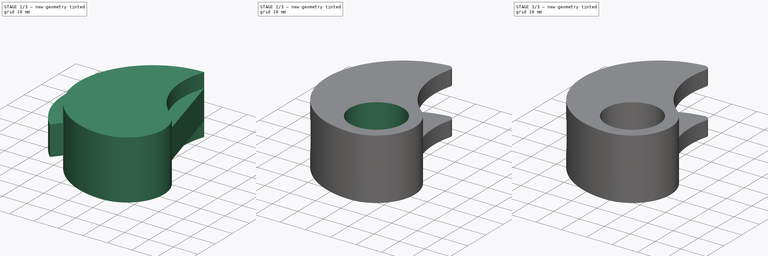
[diagram: build sequence overview — one tinted view per stage of 3, left to right]
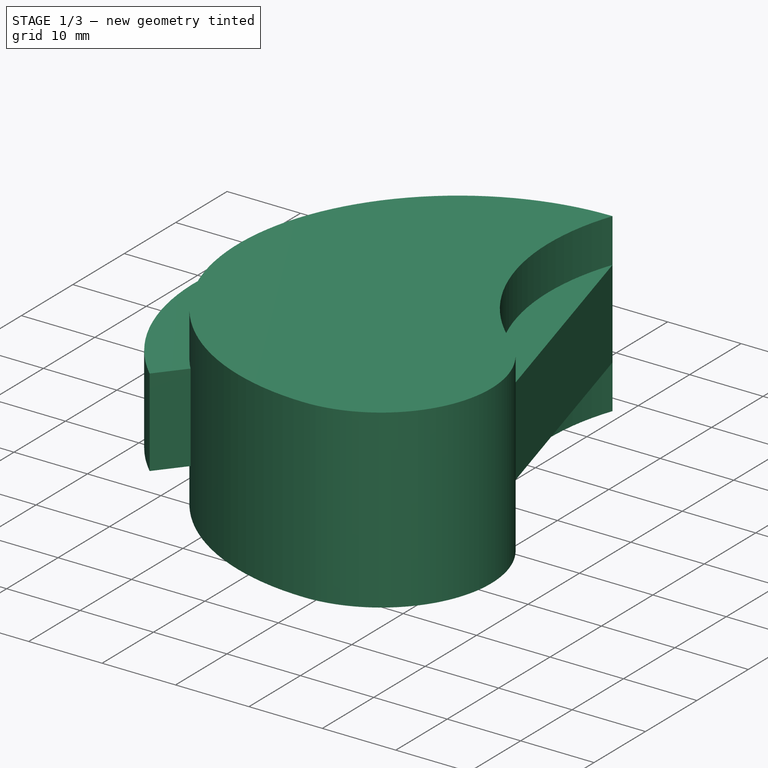
[diagram: stage 1 of 3 — iso view after this stage's code; geometry added in this stage tinted green]
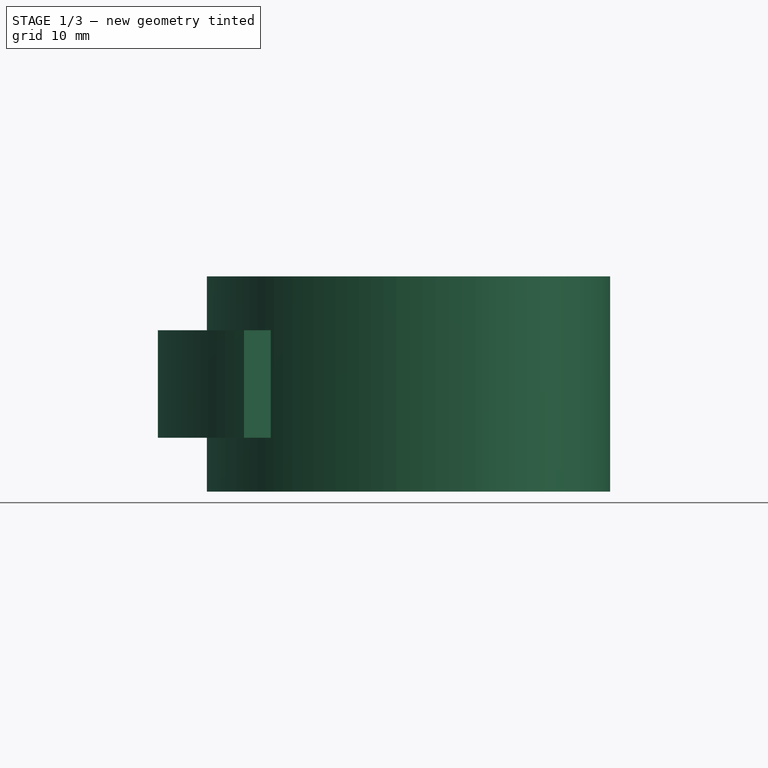
[diagram: stage 1 of 3 — front view after this stage's code; geometry added in this stage tinted green]
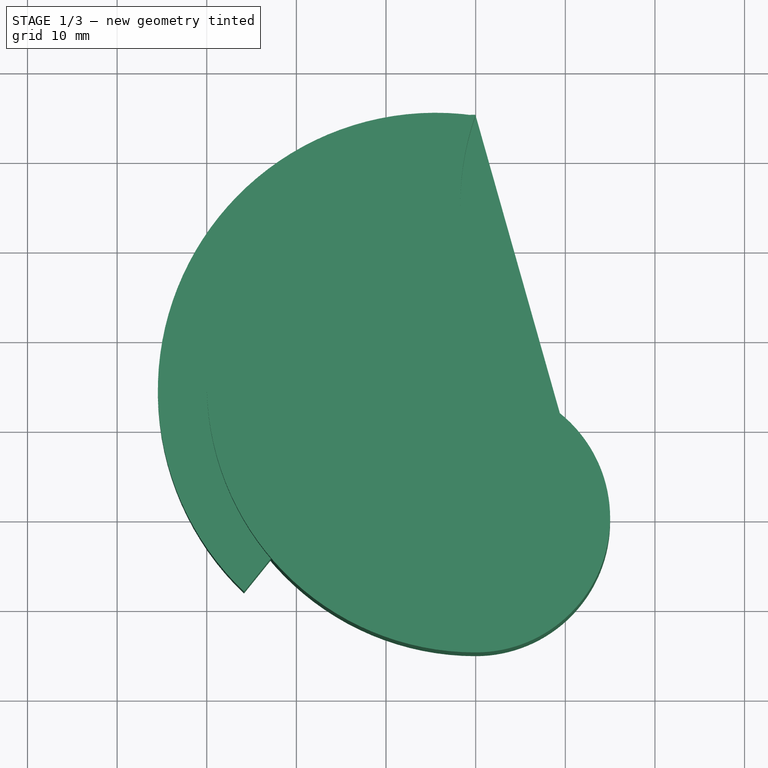
[diagram: stage 1 of 3 — top view after this stage's code; geometry added in this stage tinted green]
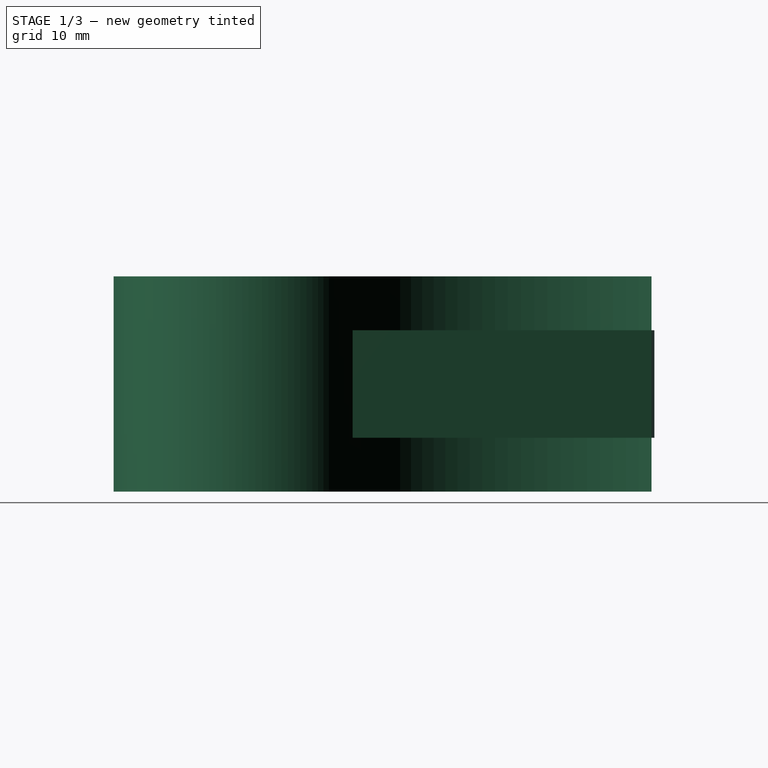
[diagram: stage 1 of 3 — right view after this stage's code; geometry added in this stage tinted green]
FCSTD DOCUMENT  (FreeCAD 0.15R4671 (Git))
Label: cam
License: All rights reserved
LicenseURL: http://en.wikipedia.org/wiki/All_rights_reserved
objects: Sketcher::SketchObject×5, PartDesign::Pocket×3, PartDesign::Pad×2, Part::Part2DObjectPython×1, Drawing::FeatureViewPython×1, PartDesign::Fillet×1, Part::Cut×1, Drawing::FeatureViewPart×1, Drawing::FeaturePage×1
note: 18 computed .brp shape members not serialized (recipe doc carries the construction recipe); baked Part::Feature solids carry a one-line shape summary decoded from their .brp

FEATURE [Sketcher::SketchObject] Sketch
  sketch-geometry (6):
    g0: Circle [constr] CenterX=0 CenterY=0 CenterZ=0 NormalX=0 NormalY=0 NormalZ=1 Radius=10.5
    g1: Circle [constr] CenterX=0 CenterY=0 CenterZ=0 NormalX=0 NormalY=0 NormalZ=1 Radius=15
    g2: Circle [constr] CenterX=0 CenterY=0 CenterZ=0 NormalX=0 NormalY=0 NormalZ=1 Radius=45
    g3: ArcOfCircle CenterX=3.255e-08 CenterY=15 CenterZ=0 NormalX=0 NormalY=0 NormalZ=1 Radius=30 StartAngle=1.5708 EndAngle=4.71239
    g4: ArcOfCircle CenterX=28.2843 CenterY=35 CenterZ=0 NormalX=0 NormalY=0 NormalZ=1 Radius=30 StartAngle=2.80176 EndAngle=4.03271
    g5: ArcOfCircle CenterX=0 CenterY=0 CenterZ=0 NormalX=0 NormalY=0 NormalZ=1 Radius=15 StartAngle=4.71239 EndAngle=7.17431
  constraints (18):
    c: Coincident(g0,g-1)
    c: Radius(g0) = 10.5
    c: Coincident(g1,g-1)
    c: Radius(g1) = 15
    c: Coincident(g2,g-1)
    c: Radius(g2) = 45
    c: PointOnObject(g3,g-2)
    c: PointOnObject(g3,g1)
    c: Tangent(g3,g1)
    c: PointOnObject(g4,g1)
    c: Coincident(g4,g3)
    c: PointOnObject(g3,g2)
    c: Tangent(g3,g2)
    c: PointOnObject(g4,g2)
    c: Coincident(g5,g-1)
    c: Coincident(g5,g4)
    c: Coincident(g5,g3)
    c: Radius(g4) = 30
FEATURE [Sketcher::SketchObject] Sketch001
  Placement = pos=(0,0,6) rot=(0,0,1;0rad)
  sketch-geometry (9):
    g0: Circle [constr] CenterX=0 CenterY=0 CenterZ=0 NormalX=0 NormalY=0 NormalZ=1 Radius=15
    g1: LineSegment [constr] StartX=0 StartY=0 StartZ=0 EndX=0 EndY=45 EndZ=0
    g2: ArcOfCircle CenterX=0 CenterY=0 CenterZ=0 NormalX=0 NormalY=0 NormalZ=1 Radius=15 StartAngle=0.891125 EndAngle=2.46192
    g3: LineSegment StartX=9.42806 StartY=11.6667 StartZ=0 EndX=0 EndY=45 EndZ=0
    g4: ArcOfCircle CenterX=-4.45802 CenterY=14.3222 CenterZ=0 NormalX=0 NormalY=0 NormalZ=1 Radius=31 StartAngle=1.42649 EndAngle=3.951
    g5: LineSegment [constr] StartX=0 StartY=0 StartZ=0 EndX=0 EndY=-15 EndZ=0
    g6: Circle [constr] CenterX=0 CenterY=0 CenterZ=0 NormalX=0 NormalY=0 NormalZ=1 Radius=45
    g7: Circle [constr] CenterX=28.2843 CenterY=35 CenterZ=0 NormalX=0 NormalY=0 NormalZ=1 Radius=30
    g8: LineSegment StartX=-11.6667 StartY=9.42806 StartZ=0 EndX=-25.8459 EndY=-8.11791 EndZ=0
  constraints (25):
    c: Coincident(g0,g-1)
    c: Radius(g0) = 15
    c: Coincident(g1,g-1)
    c: Distance(g1) = 45
    c: Vertical(g1)
    c: Coincident(g2,g-1)
    c: Coincident(g3,g1)
    c: Coincident(g4,g1)
    c: Coincident(g2,g3)
    c: PointOnObject(g2,g0)
    c: Coincident(g5,g-1)
    c: Vertical(g5)
    c: Distance(g5) = 15
    c: Coincident(g6,g-1)
    c: Radius(g6) = 45
    c: PointOnObject(g7,g6)
    c: Radius(g7) = 30
    c: PointOnObject(g1,g7)
    c: PointOnObject(g2,g7)
    c: Coincident(g8,g2)
    c: Coincident(g4,g8)
    c: Angle(g2) = 1.5708
    c: PointOnObject(g4,g0)
    c: Tangent(g8,g0)
    c: Radius(g4) = 31
FEATURE [PartDesign::Pad] Pad001
  Length = 12
  Length2 = 100
  Placement = pos=(0,0,6) rot=(0,0,1;0rad)
  Sketch = -> Sketch001
  Type = 0
FEATURE [Part::Part2DObjectPython] Circle  # Draft 2D object (typed FeaturePython)
  FirstAngle = 0
  LastAngle = 0
  MakeFace = true
  Placement = pos=(0,0,0) rot=(1,0,0;3.14159rad)
  Radius = 1
FEATURE [Drawing::FeatureViewPython] ViewCircle  # drawing view (typed FeaturePython)
  Direction = (0,0,0)
  FillStyle = 0
  FontSize = 12
  LineStyle = 0
  LineWidth = 0.35
  Rotation = 0
  Source = -> Circle
  ViewResult = <g id="ViewCircle" transform="rotate(0.0,20.0,40.0) translate(20.0,40.0) scale(1.0,-1.0)"><circle cx="0.0" cy="0.0" r="1.0" stroke="#000000" stroke-width="0.35 px" style="stroke-width:0.35;stroke-miterlimit:4;stroke-dasharray:none;fill:#cccccc"/>\n</g>
  Visible = true
  X = 20
  Y = 40
FEATURE [PartDesign::Pad] Pad
  Length = 24
  Length2 = 100
  Sketch = -> Sketch
  Type = 0
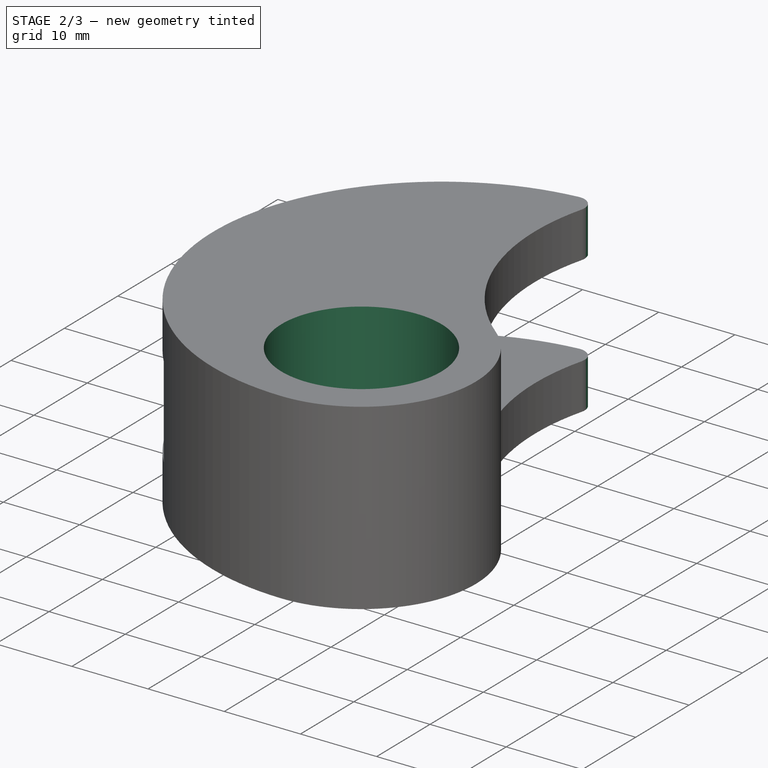
[diagram: stage 2 of 3 — iso view after this stage's code; geometry added in this stage tinted green]
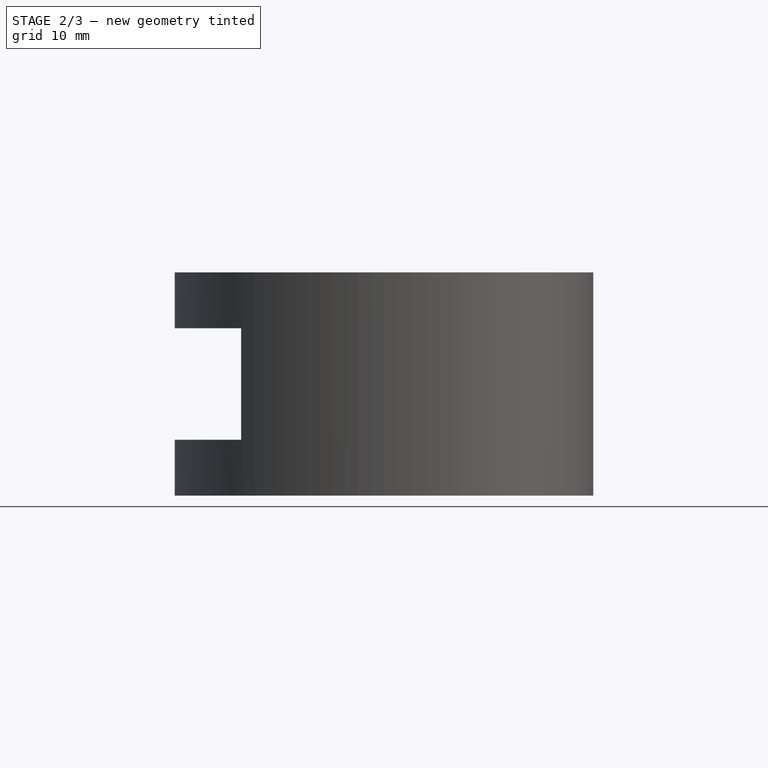
[diagram: stage 2 of 3 — front view after this stage's code; geometry added in this stage tinted green]
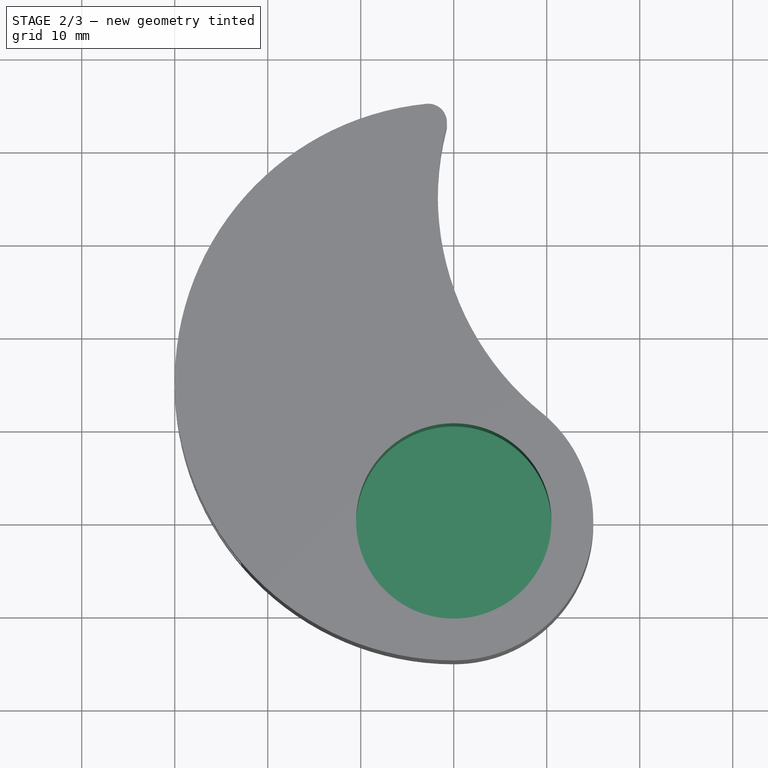
[diagram: stage 2 of 3 — top view after this stage's code; geometry added in this stage tinted green]
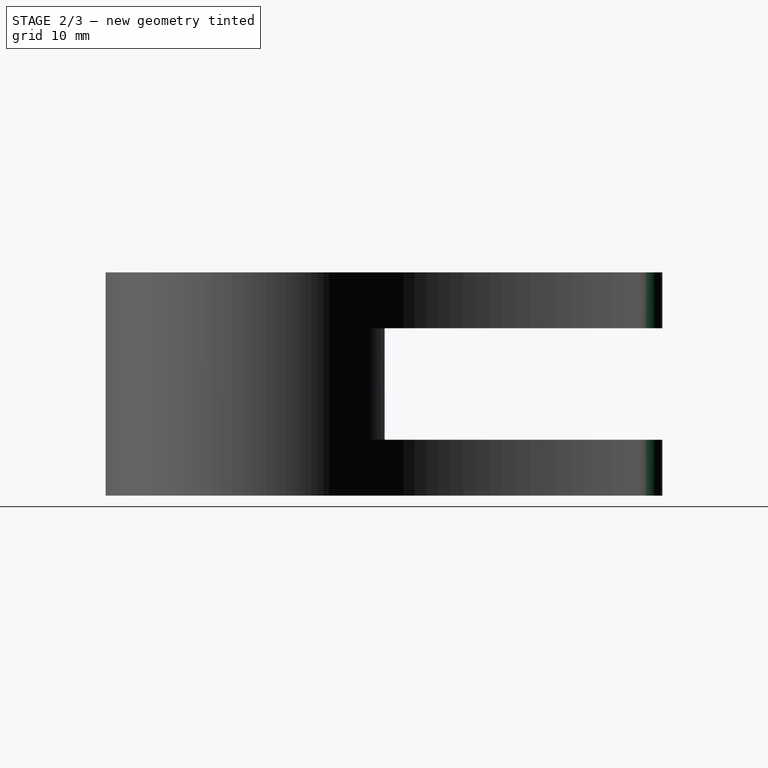
[diagram: stage 2 of 3 — right view after this stage's code; geometry added in this stage tinted green]
FEATURE [PartDesign::Fillet] Fillet
  Base = -> Pad [Edge1]
  Radius = 2
FEATURE [Part::Cut] Cut
  Base = -> Fillet
  Tool = -> Pad001
FEATURE [Drawing::FeatureViewPart] View
  Direction = (0,0,1)
  HiddenWidth = 0.15
  LineWidth = 0.35
  Rotation = 90
  ShowHiddenLines = false
  ShowSmoothLines = false
  Source = -> Cut
  Tolerance = 0.05
  ViewResult = <g id="View"\n   transform="rotate(90,20,40) translate(20,40) scale(1,1)"\n  >\n<g   stroke="rgb(0, 0, 0)"\n   stroke-width="0.35"\n   stroke-linecap="butt"\n   stroke-linejoin="miter"\n   fill="none"\n   transform="scale(1,-1)"\n  >\n<path d="M-2.9291 44.8567 A30 30 0 0 1 4.5841e-14 -15" /><path d="M-2.75546e-15 -15 A15 15 0 0 1 9.42806 11.6667" /><path d="M-2.9291,44.8567 C-2.32867,44.9184 -1.68458,44.6936 -1.24468,44.2013  C-1.03163,43.9645 -0.870549,43.6669 -0.791554,43.3433  C-0.712736,43.0255 -0.715544,42.6855 -0.795196,42.3746 " /><path d="M-0.795196 42.3746 A30 30 0 0 1 9.42806 11.6667" /><path d="M9.42806 11.6667 A30 30 0 0 0 -0.795196 42.3746" /><path d="M-0.795196,42.3746 C-0.715544,42.6855 -0.712736,43.0255 -0.791554,43.3433  C-0.870549,43.6669 -1.03163,43.9645 -1.24468,44.2013  C-1.68458,44.6936 -2.32867,44.9184 -2.9291,44.8567 " /></g>\n</g>
  Visible = true
  X = 20
  Y = 40
FEATURE [Drawing::FeaturePage] Page
  Group = -> [View,ViewCircle]
  Template = <path>
FEATURE [Sketcher::SketchObject] Sketch003
  Placement = pos=(0,0,24) rot=(0,0,1;0rad)
  Support = -> Cut [Face4]
  sketch-geometry (1):
    g0: Circle CenterX=0 CenterY=0 CenterZ=0 NormalX=0 NormalY=0 NormalZ=1 Radius=10.5
  constraints (2):
    c: Coincident(g0,g-1)
    c: Radius(g0) = 10.5
FEATURE [PartDesign::Pocket] Pocket
  Length = 20
  Sketch = -> Sketch003
  Type = 0
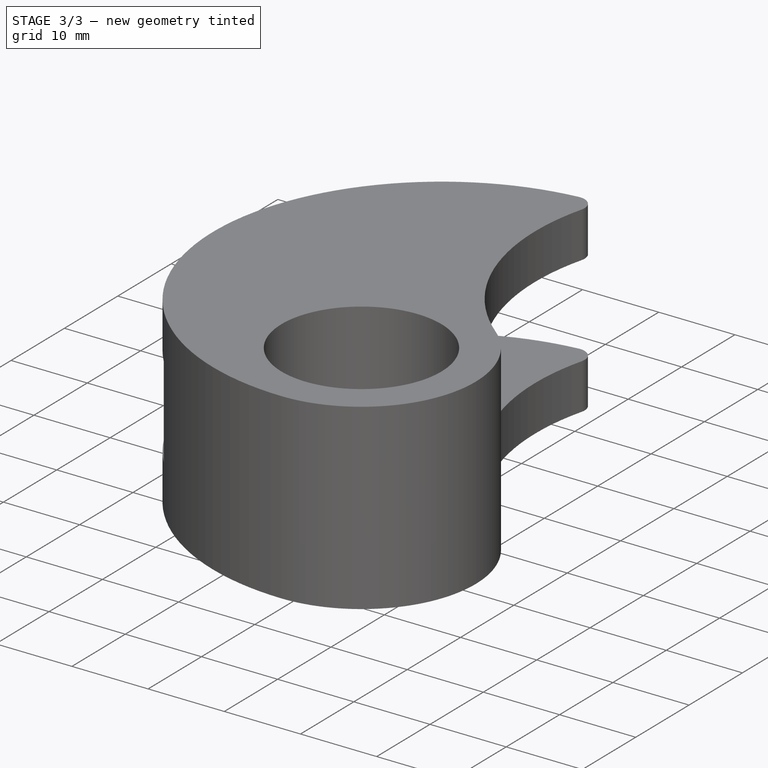
[diagram: stage 3 of 3 — iso view after this stage's code; geometry added in this stage tinted green]
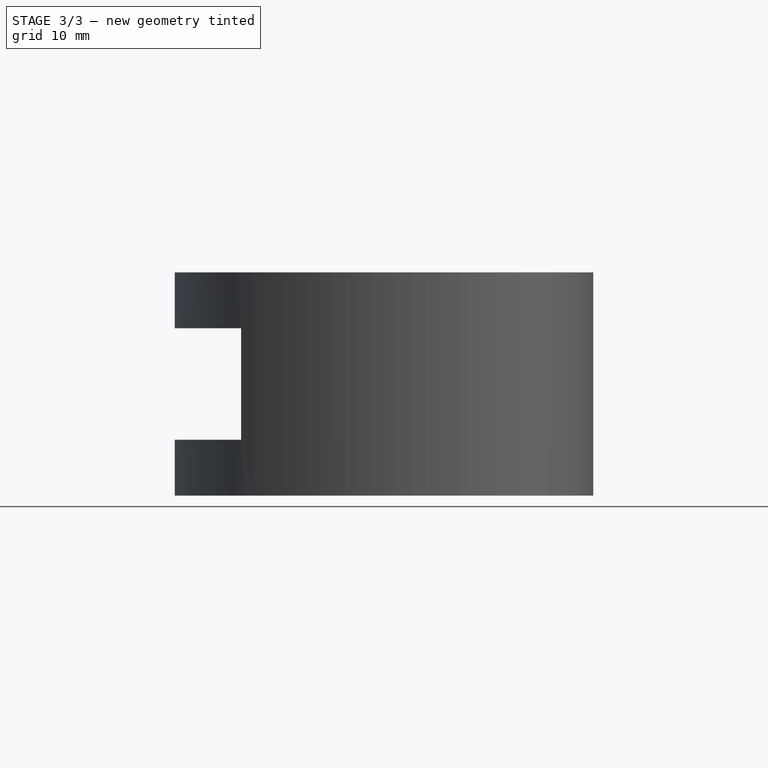
[diagram: stage 3 of 3 — front view after this stage's code; geometry added in this stage tinted green]
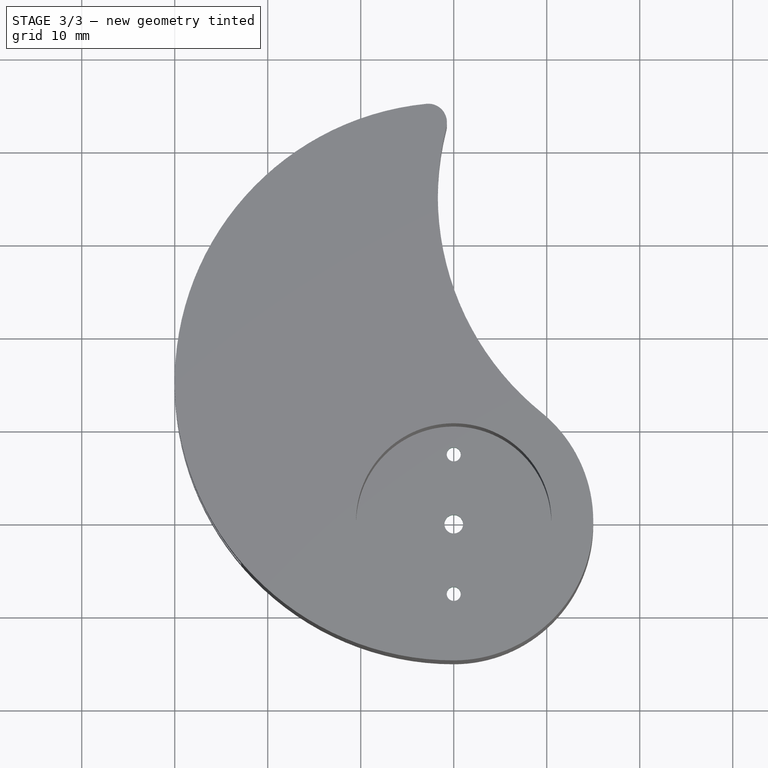
[diagram: stage 3 of 3 — top view after this stage's code; geometry added in this stage tinted green]
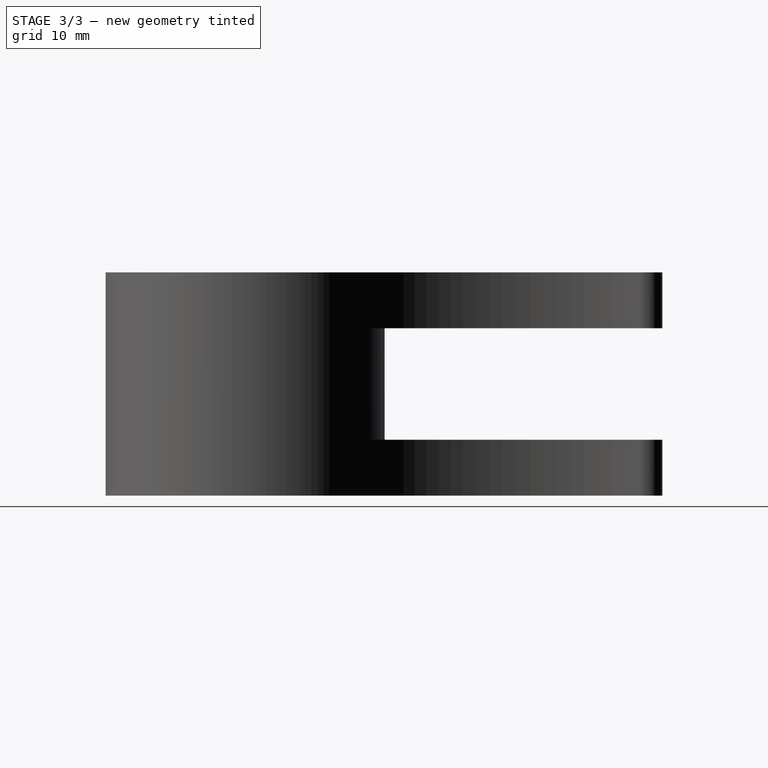
[diagram: stage 3 of 3 — right view after this stage's code; geometry added in this stage tinted green]
FEATURE [Sketcher::SketchObject] Sketch002
  Placement = pos=(0,0,0) rot=(1,0,0;3.14159rad)
  Support = -> Pocket [Face2]
  sketch-geometry (1):
    g0: Circle CenterX=0 CenterY=0 CenterZ=0 NormalX=0 NormalY=0 NormalZ=1 Radius=10.5
  constraints (2):
    c: Coincident(g0,g-1)
    c: Radius(g0) = 10.5
FEATURE [PartDesign::Pocket] Pocket001
  Length = 2
  Sketch = -> Sketch002
  Type = 0
FEATURE [Sketcher::SketchObject] Sketch004
  Placement = pos=(0,0,2) rot=(1,0,0;3.14159rad)
  Support = -> Pocket001 [Face16]
  sketch-geometry (5):
    g0: Circle CenterX=0 CenterY=0 CenterZ=0 NormalX=0 NormalY=0 NormalZ=1 Radius=1
    g1: Circle [constr] CenterX=0 CenterY=0 CenterZ=0 NormalX=0 NormalY=0 NormalZ=1 Radius=7.5
    g2: LineSegment [constr] StartX=0 StartY=7.5 StartZ=0 EndX=0 EndY=-7.5 EndZ=0
    g3: Circle CenterX=0 CenterY=7.5 CenterZ=0 NormalX=0 NormalY=0 NormalZ=1 Radius=0.75
    g4: Circle CenterX=0 CenterY=-7.5 CenterZ=0 NormalX=0 NormalY=0 NormalZ=1 Radius=0.75
  constraints (11):
    c: Coincident(g0,g-1)
    c: Radius(g0) = 1
    c: Coincident(g1,g-1)
    c: Radius(g1) = 7.5
    c: PointOnObject(g2,g1)
    c: PointOnObject(g2,g1)
    c: Vertical(g2)
    c: Coincident(g3,g2)
    c: Radius(g3) = 0.75
    c: Coincident(g4,g2)
    c: Radius(g4) = 0.75
FEATURE [PartDesign::Pocket] Pocket002
  Length = 2
  Sketch = -> Sketch004
  Type = 0
note: 1 file-system path scrubbed to <path> (originals preserved in the JSON sidecar)
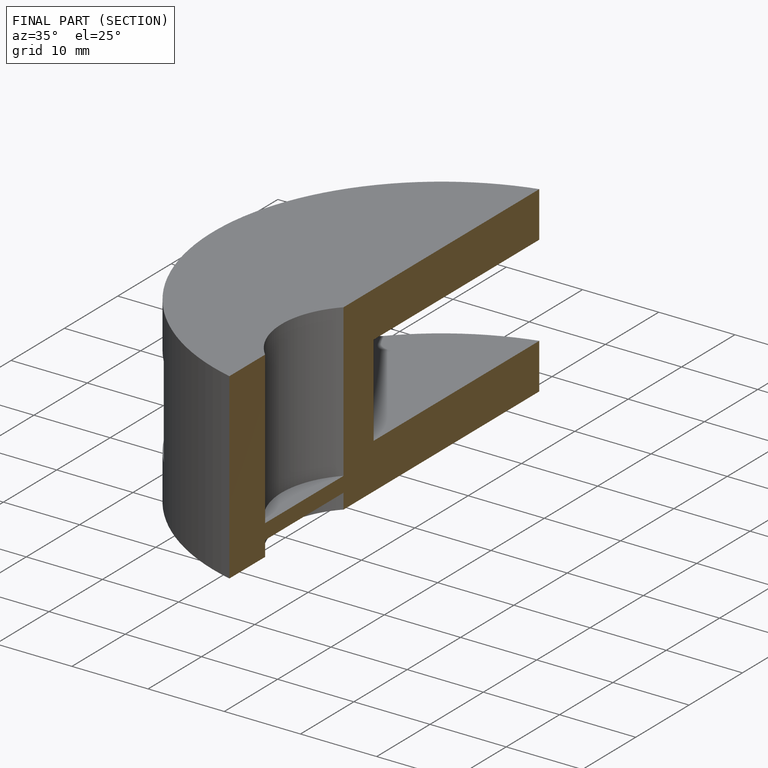
[diagram: finished part — half-section view (interior)]
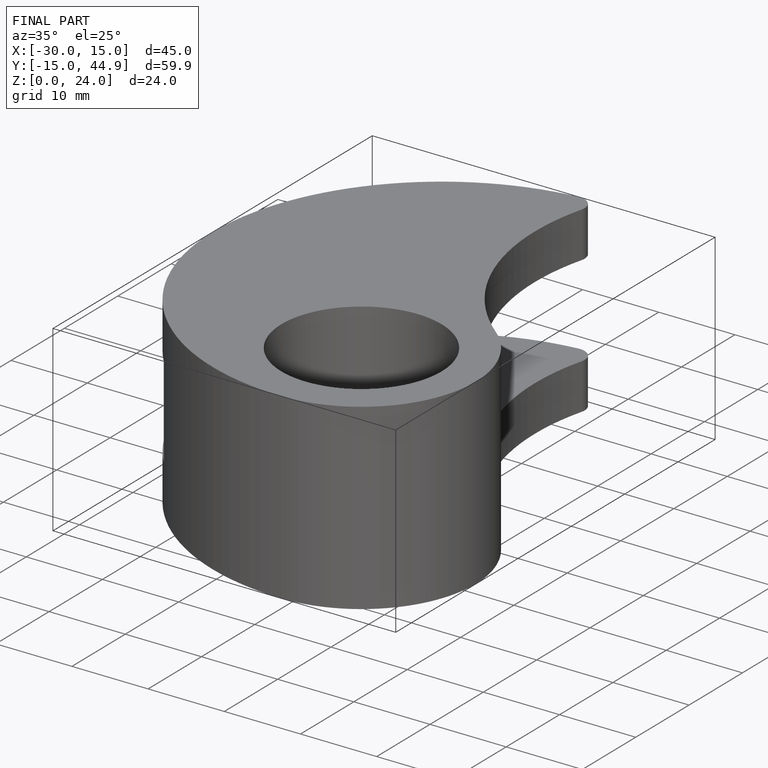
[diagram: finished part — iso view with bounding-box wireframe]
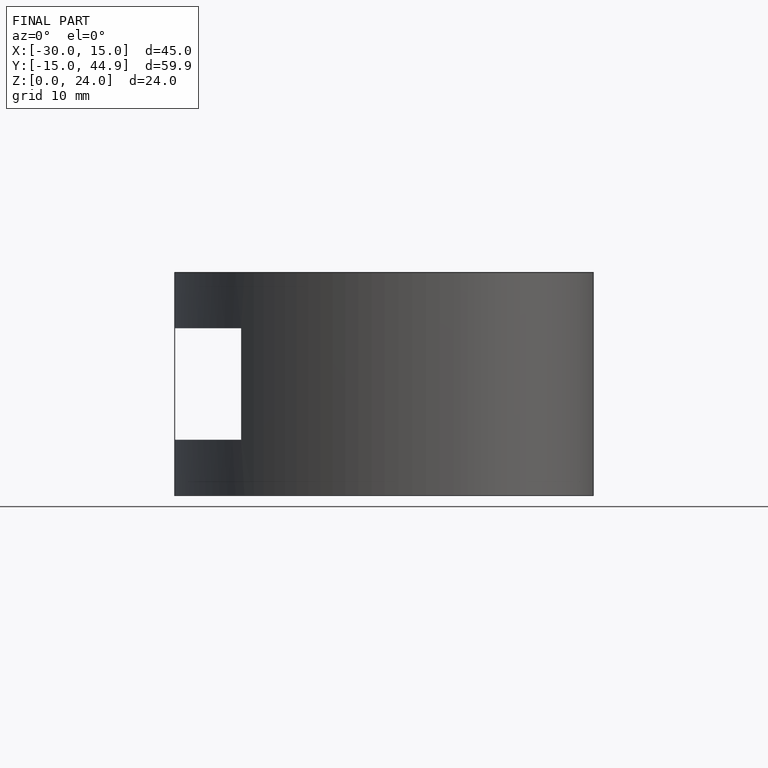
[diagram: finished part — front view with bounding-box wireframe]
